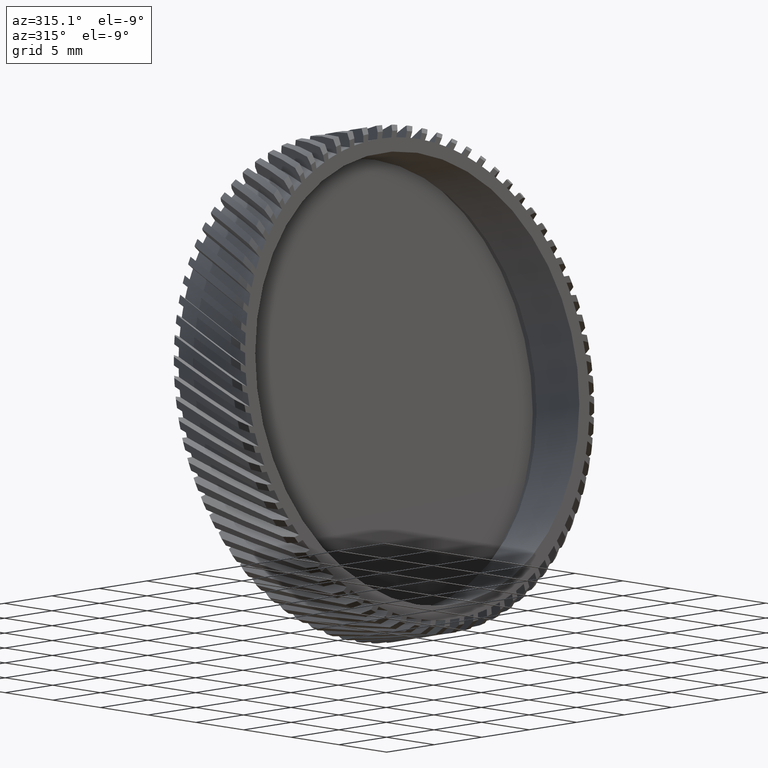
[diagram: clean part render]
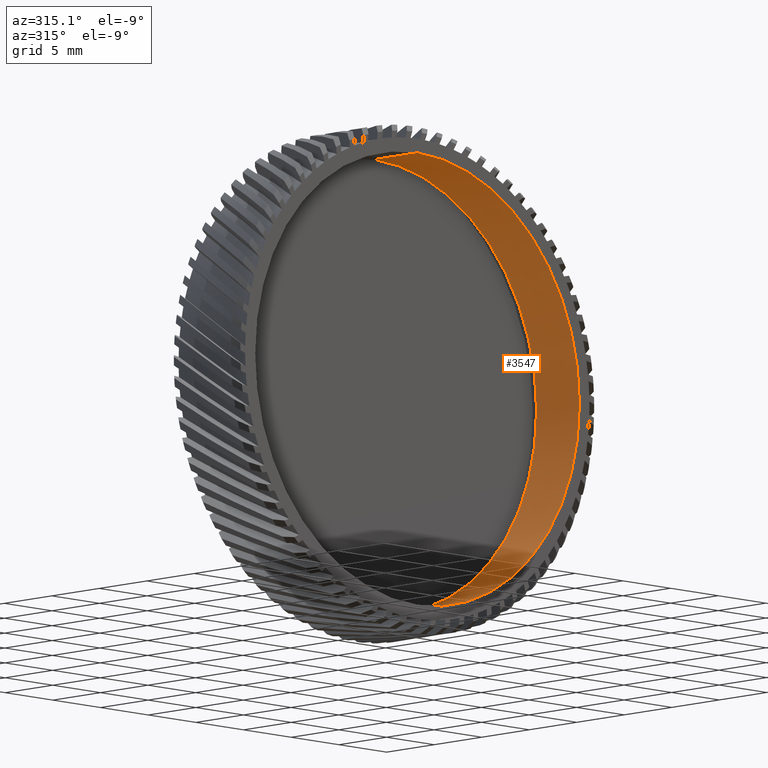
[diagram: same view with one face highlighted and labeled with its STEP entity id]
A machine part, auxiliary view. The second image highlights one B-rep face of the part: STEP entity #3547.
In plain terms, the highlighted cylindrical surface (partial cylindrical patch) has radius 17 mm, axis along (-0, 1, -0).
Its self-contained STEP definition (entity closure, byte-faithful):
#697 = ORIENTED_EDGE ( 'NONE', *, *, #7875, .F. ) ;
#1374 = LINE ( 'NONE', #4353, #13560 ) ;
#1409 = LINE ( 'NONE', #14016, #6321 ) ;
#1683 = VERTEX_POINT ( 'NONE', #2905 ) ;
#1707 = VERTEX_POINT ( 'NONE', #11499 ) ;
#1945 = CIRCLE ( 'NONE', #9061, 17.00000000000000700 ) ;
#1984 = DIRECTION ( 'NONE',  ( -0.0000000000000000000, 1.000000000000000000, -0.0000000000000000000 ) ) ;
#2312 = CARTESIAN_POINT ( 'NONE',  ( 2.081899558550501500E-015, -13.33088448223191600, -17.00000000000000700 ) ) ;
#2343 = CYLINDRICAL_SURFACE ( 'NONE', #4567, 17.00000000000000700 ) ;
#2905 = CARTESIAN_POINT ( 'NONE',  ( 0.0000000000000000000, -13.33088448223191600, 17.00000000000000700 ) ) ;
#3547 = ADVANCED_FACE ( 'NONE', ( #11279 ), #2343, .F. ) ;
#3898 = EDGE_CURVE ( 'NONE', #1683, #9491, #1374, .T. ) ;
#4091 = EDGE_CURVE ( 'NONE', #9491, #1707, #1945, .T. ) ;
#4353 = CARTESIAN_POINT ( 'NONE',  ( 0.0000000000000000000, 46.02073106022621100, 17.00000000000000700 ) ) ;
#4567 = AXIS2_PLACEMENT_3D ( 'NONE', #4652, #13445, #7177 ) ;
#4652 = CARTESIAN_POINT ( 'NONE',  ( 0.0000000000000000000, 46.02073106022621100, 0.0000000000000000000 ) ) ;
#5291 = ORIENTED_EDGE ( 'NONE', *, *, #10353, .F. ) ;
#6079 = AXIS2_PLACEMENT_3D ( 'NONE', #10275, #6742, #11550 ) ;
#6321 = VECTOR ( 'NONE', #11397, 1000.000000000000000 ) ;
#6742 = DIRECTION ( 'NONE',  ( -0.0000000000000000000, 1.000000000000000000, -0.0000000000000000000 ) ) ;
#6859 = DIRECTION ( 'NONE',  ( -0.0000000000000000000, 1.000000000000000000, -0.0000000000000000000 ) ) ;
#7177 = DIRECTION ( 'NONE',  ( 0.0000000000000000000, 0.0000000000000000000, 1.000000000000000000 ) ) ;
#7875 = EDGE_CURVE ( 'NONE', #1683, #14438, #8543, .T. ) ;
#8181 = CARTESIAN_POINT ( 'NONE',  ( 0.0000000000000000000, -8.830884482231917700, 0.0000000000000000000 ) ) ;
#8543 = CIRCLE ( 'NONE', #6079, 17.00000000000000700 ) ;
#8586 = EDGE_LOOP ( 'NONE', ( #5291, #697, #8645, #8654 ) ) ;
#8645 = ORIENTED_EDGE ( 'NONE', *, *, #3898, .T. ) ;
#8654 = ORIENTED_EDGE ( 'NONE', *, *, #4091, .T. ) ;
#9061 = AXIS2_PLACEMENT_3D ( 'NONE', #8181, #6859, #9377 ) ;
#9377 = DIRECTION ( 'NONE',  ( 0.0000000000000000000, 0.0000000000000000000, 1.000000000000000000 ) ) ;
#9491 = VERTEX_POINT ( 'NONE', #13067 ) ;
#10275 = CARTESIAN_POINT ( 'NONE',  ( 0.0000000000000000000, -13.33088448223191600, 0.0000000000000000000 ) ) ;
#10353 = EDGE_CURVE ( 'NONE', #14438, #1707, #1409, .T. ) ;
#11279 = FACE_OUTER_BOUND ( 'NONE', #8586, .T. ) ;
#11397 = DIRECTION ( 'NONE',  ( -0.0000000000000000000, 1.000000000000000000, -0.0000000000000000000 ) ) ;
#11499 = CARTESIAN_POINT ( 'NONE',  ( 2.081899558550501500E-015, -8.830884482231917700, -17.00000000000000700 ) ) ;
#11550 = DIRECTION ( 'NONE',  ( 0.0000000000000000000, 0.0000000000000000000, 1.000000000000000000 ) ) ;
#13067 = CARTESIAN_POINT ( 'NONE',  ( 0.0000000000000000000, -8.830884482231917700, 17.00000000000000700 ) ) ;
#13445 = DIRECTION ( 'NONE',  ( -0.0000000000000000000, 1.000000000000000000, -0.0000000000000000000 ) ) ;
#13560 = VECTOR ( 'NONE', #1984, 1000.000000000000000 ) ;
#14016 = CARTESIAN_POINT ( 'NONE',  ( 2.081899558550501500E-015, 46.02073106022621100, -17.00000000000000700 ) ) ;
#14438 = VERTEX_POINT ( 'NONE', #2312 ) ;